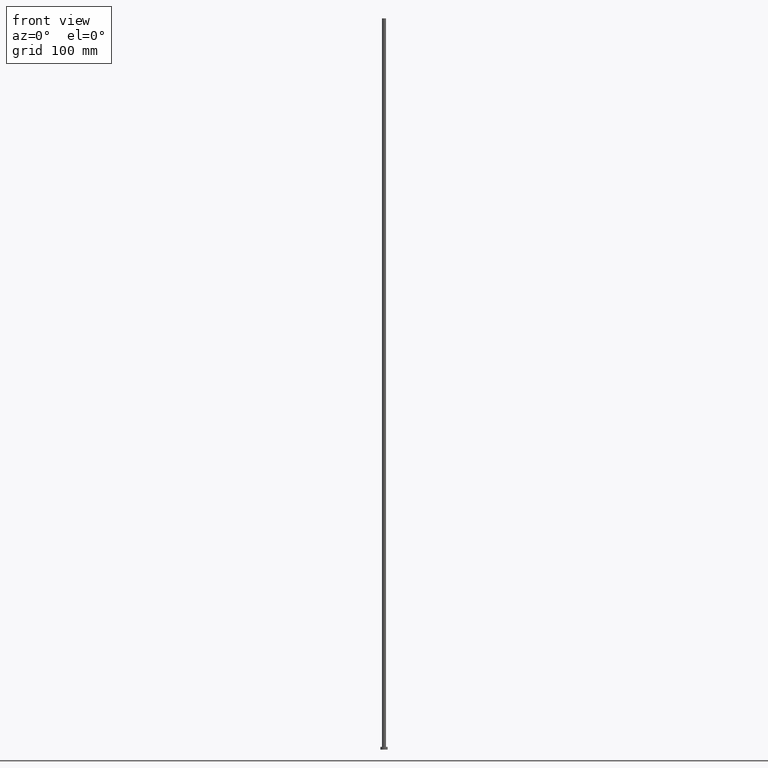
[diagram: clean part render]
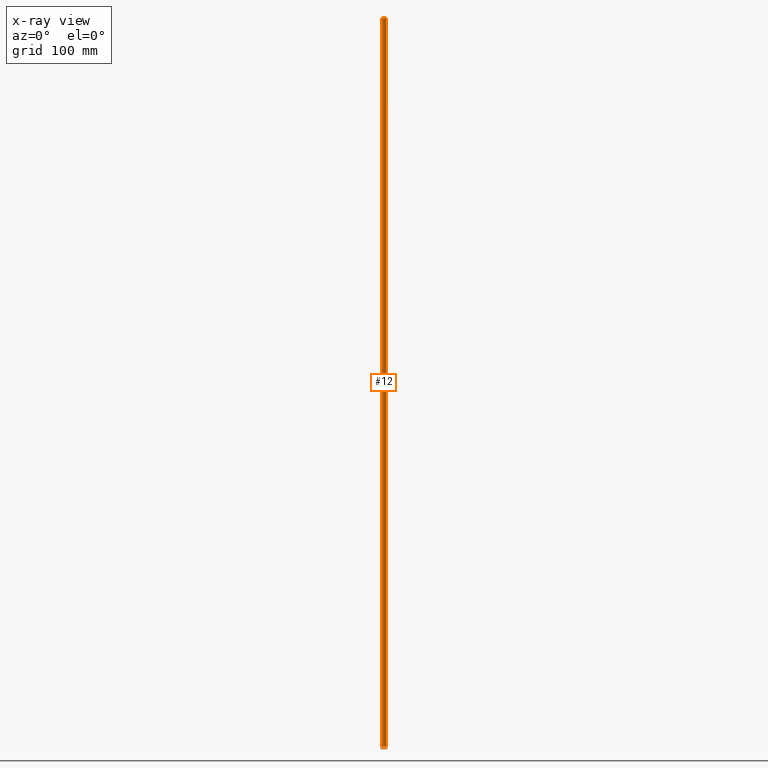
[diagram: x-ray — body ghosted, one internal face saturated and labeled with its STEP entity id]
A machine part, front view, then the same camera in x-ray: the body is ghosted and one INTERNAL B-rep face — a face not visible from any outside direction — is saturated and labeled: STEP entity #12.
In plain terms, the highlighted cylindrical surface (edge-blend (fillet) strip) has radius 2.25 mm, axis along (-0, -0, -1).
Its self-contained STEP definition (entity closure, byte-faithful):
#4 = CARTESIAN_POINT ( 'NONE',  ( 2.250000000000000000, 2.755455298081544285E-16, 800.0000000000000000 ) ) ;
#12 = ADVANCED_FACE ( 'NONE', ( #254 ), #32, .T. ) ;
#14 = CARTESIAN_POINT ( 'NONE',  ( 2.250000000000000000, 2.755455298081544285E-16, 800.0000000000000000 ) ) ;
#25 = VECTOR ( 'NONE', #223, 1000.000000000000000 ) ;
#32 = CYLINDRICAL_SURFACE ( 'NONE', #126, 2.250000000000000000 ) ;
#35 = VERTEX_POINT ( 'NONE', #14 ) ;
#42 = LINE ( 'NONE', #123, #25 ) ;
#61 = DIRECTION ( 'NONE',  ( 0.000000000000000000, 0.000000000000000000, 1.000000000000000000 ) ) ;
#82 = DIRECTION ( 'NONE',  ( -0.000000000000000000, -0.000000000000000000, -1.000000000000000000 ) ) ;
#84 = AXIS2_PLACEMENT_3D ( 'NONE', #178, #61, #160 ) ;
#86 = EDGE_LOOP ( 'NONE', ( #140, #124, #235, #242 ) ) ;
#96 = DIRECTION ( 'NONE',  ( 0.000000000000000000, 0.000000000000000000, 1.000000000000000000 ) ) ;
#103 = CARTESIAN_POINT ( 'NONE',  ( 0.000000000000000000, 0.000000000000000000, 800.0000000000000000 ) ) ;
#117 = EDGE_CURVE ( 'NONE', #35, #151, #144, .T. ) ;
#118 = VERTEX_POINT ( 'NONE', #120 ) ;
#120 = CARTESIAN_POINT ( 'NONE',  ( -2.250000000000000000, 0.000000000000000000, 3.000000000000000000 ) ) ;
#123 = CARTESIAN_POINT ( 'NONE',  ( -2.250000000000000000, 0.000000000000000000, 800.0000000000000000 ) ) ;
#124 = ORIENTED_EDGE ( 'NONE', *, *, #117, .T. ) ;
#126 = AXIS2_PLACEMENT_3D ( 'NONE', #103, #163, #236 ) ;
#139 = CARTESIAN_POINT ( 'NONE',  ( 0.000000000000000000, 0.000000000000000000, 800.0000000000000000 ) ) ;
#140 = ORIENTED_EDGE ( 'NONE', *, *, #195, .F. ) ;
#144 = LINE ( 'NONE', #4, #162 ) ;
#151 = VERTEX_POINT ( 'NONE', #181 ) ;
#160 = DIRECTION ( 'NONE',  ( 1.000000000000000000, 0.000000000000000000, 0.000000000000000000 ) ) ;
#161 = CIRCLE ( 'NONE', #202, 2.250000000000000000 ) ;
#162 = VECTOR ( 'NONE', #82, 1000.000000000000000 ) ;
#163 = DIRECTION ( 'NONE',  ( -0.000000000000000000, -0.000000000000000000, -1.000000000000000000 ) ) ;
#164 = EDGE_CURVE ( 'NONE', #218, #118, #42, .T. ) ;
#167 = CIRCLE ( 'NONE', #84, 2.250000000000000000 ) ;
#178 = CARTESIAN_POINT ( 'NONE',  ( 0.000000000000000000, 0.000000000000000000, 3.000000000000000000 ) ) ;
#181 = CARTESIAN_POINT ( 'NONE',  ( 2.250000000000000000, 2.755455298081544285E-16, 3.000000000000000000 ) ) ;
#195 = EDGE_CURVE ( 'NONE', #35, #218, #161, .T. ) ;
#202 = AXIS2_PLACEMENT_3D ( 'NONE', #139, #96, #234 ) ;
#207 = EDGE_CURVE ( 'NONE', #151, #118, #167, .T. ) ;
#218 = VERTEX_POINT ( 'NONE', #247 ) ;
#223 = DIRECTION ( 'NONE',  ( -0.000000000000000000, -0.000000000000000000, -1.000000000000000000 ) ) ;
#234 = DIRECTION ( 'NONE',  ( 1.000000000000000000, 0.000000000000000000, 0.000000000000000000 ) ) ;
#235 = ORIENTED_EDGE ( 'NONE', *, *, #207, .T. ) ;
#236 = DIRECTION ( 'NONE',  ( -1.000000000000000000, 0.000000000000000000, 0.000000000000000000 ) ) ;
#242 = ORIENTED_EDGE ( 'NONE', *, *, #164, .F. ) ;
#247 = CARTESIAN_POINT ( 'NONE',  ( -2.250000000000000000, 0.000000000000000000, 800.0000000000000000 ) ) ;
#254 = FACE_OUTER_BOUND ( 'NONE', #86, .T. ) ;